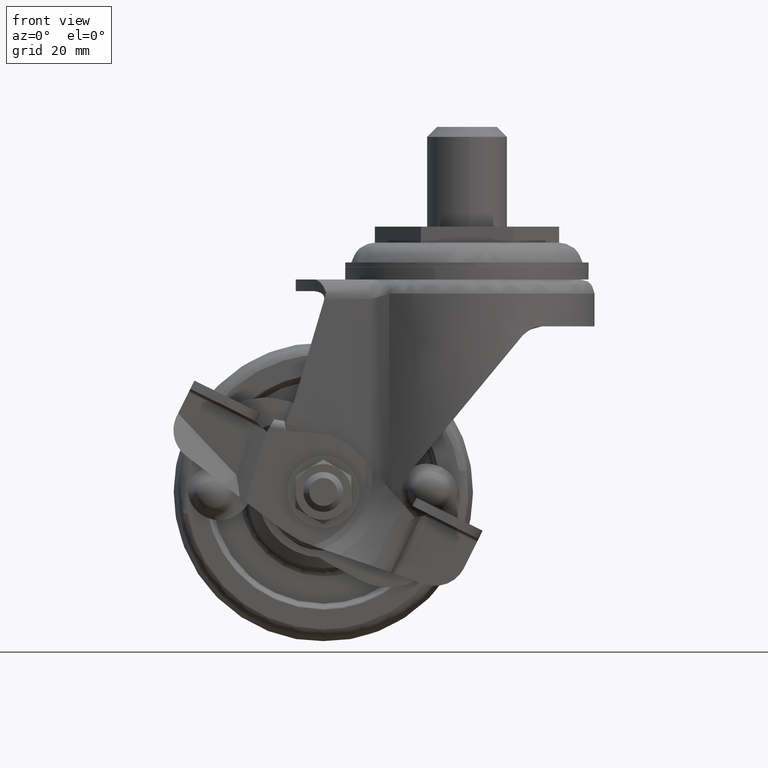
[diagram: clean part render]
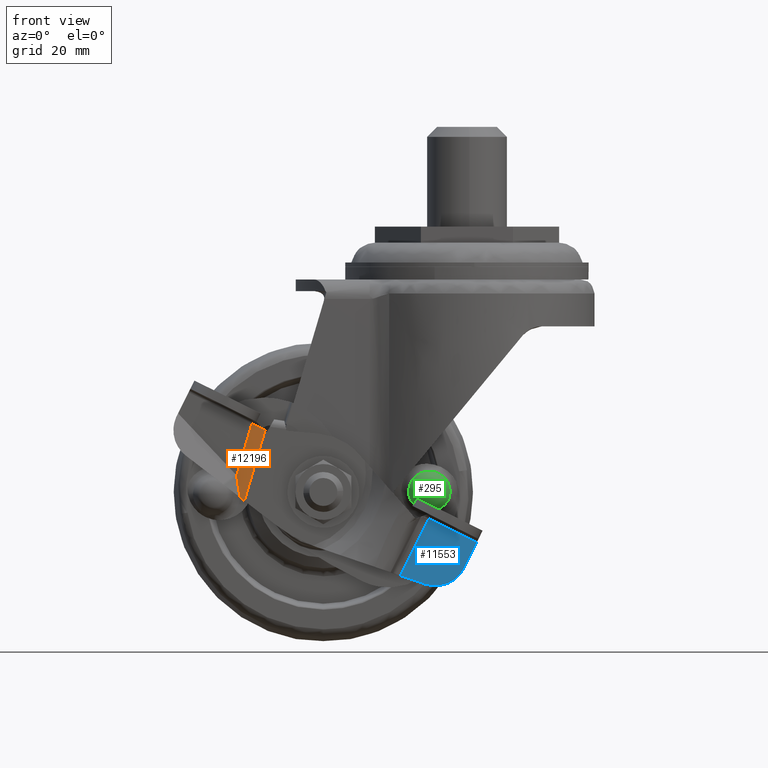
[diagram: same view with three faces highlighted in distinct colors, each labeled with its STEP entity id]
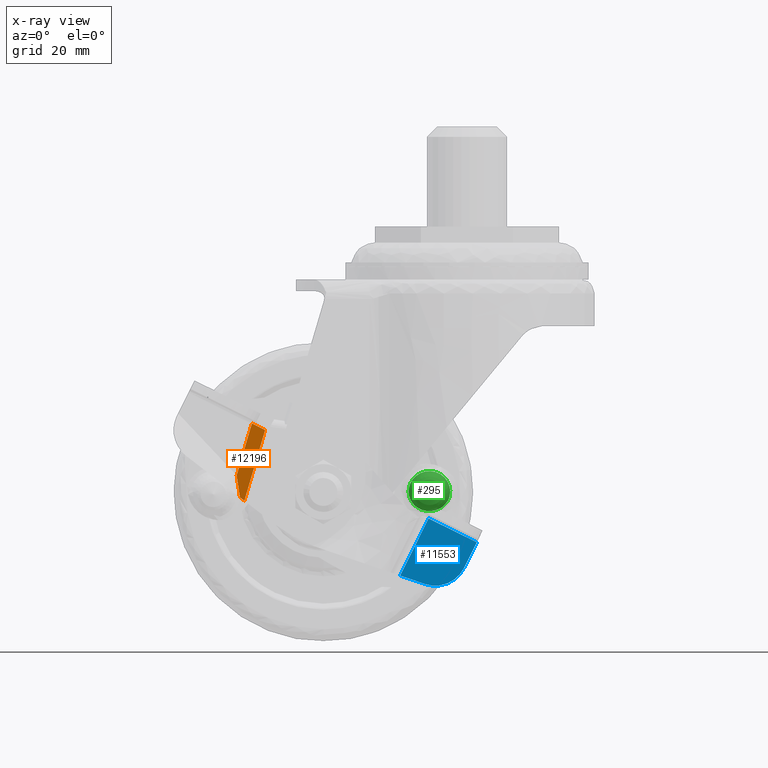
[diagram: x-ray of the same camera — body ghosted, the three highlighted faces saturated]
A machine part, front view with three faces highlighted in distinct colors.
The next image is the same camera in x-ray (body ghosted, the three faces saturated) — at least one of them is partly hidden behind the body in this view.
Their STEP definitions:

[orange] entity #12196 — the highlighted face is a freeform B-spline surface patch.
#10181=CARTESIAN_POINT('',(-53.922996832973801,-24.201038000000000,-45.427903192544029));
#10182=VERTEX_POINT('',#10181);
#10190=CARTESIAN_POINT('',(-53.892253483723209,-24.204782371683550,-45.346633070148677));
#10191=VERTEX_POINT('',#10190);
#10192=CARTESIAN_POINT('',(-53.892253483723209,-24.204782371683550,-45.346633070148677));
#10193=CARTESIAN_POINT('',(-53.910598850883410,-24.201038000000000,-45.385698108649251));
#10194=CARTESIAN_POINT('',(-53.922996832973759,-24.201038000000000,-45.427903192543951));
#10202=(BOUNDED_CURVE()B_SPLINE_CURVE(2,(#10192,#10193,#10194),.UNSPECIFIED.,.F.,.U.)CURVE()GEOMETRIC_REPRESENTATION_ITEM()QUASI_UNIFORM_CURVE()RATIONAL_B_SPLINE_CURVE((1.0,0.999063468533536,1.0))REPRESENTATION_ITEM(''));
#10203=EDGE_CURVE('',#10191,#10182,#10202,.T.);
#12107=CARTESIAN_POINT('',(-57.732734190092913,-24.201038000000000,-58.396972158955080));
#12108=VERTEX_POINT('',#12107);
#12109=CARTESIAN_POINT('',(-53.922996832973801,-24.201038000000000,-45.427903192544029));
#12110=CARTESIAN_POINT('',(-57.732734190092913,-24.201038000000000,-58.396972158955080));
#12111=QUASI_UNIFORM_CURVE('',1,(#12109,#12110),.UNSPECIFIED.,.F.,.U.);
#12112=EDGE_CURVE('',#10182,#12108,#12111,.T.);
#12139=CARTESIAN_POINT('',(-58.540480401460677,-24.926882033979151,-65.680068682042759));
#12140=CARTESIAN_POINT('',(-51.543972487027602,-28.740320535323029,-65.680068682042759));
#12141=CARTESIAN_POINT('',(-57.107348187129077,-22.297517255586499,-44.379295942986353));
#12142=CARTESIAN_POINT('',(-50.110840272696009,-26.110955756930380,-44.379295942986353));
#12143=B_SPLINE_SURFACE_WITH_KNOTS('',1,1,((#12139,#12141),(#12140,#12142)),.UNSPECIFIED.,.F.,.F.,.U.,(2,2),(2,2),(0.0,7.968276865185881),(0.0,21.510238175402328),.UNSPECIFIED.);
#12144=CARTESIAN_POINT('',(-50.609668868128310,-26.270028859010299,-47.070919676201477));
#12145=VERTEX_POINT('',#12144);
#12146=CARTESIAN_POINT('',(-50.786893009545608,-26.144721783127100,-46.891598881695728));
#12147=VERTEX_POINT('',#12146);
#12148=CARTESIAN_POINT('',(-50.609668868128310,-26.270028859010299,-47.070919676201477));
#12149=CARTESIAN_POINT('',(-50.786893009545608,-26.144721783127100,-46.891598881695728));
#12150=QUASI_UNIFORM_CURVE('',1,(#12148,#12149),.UNSPECIFIED.,.F.,.U.);
#12151=EDGE_CURVE('',#12145,#12147,#12150,.T.);
#12152=ORIENTED_EDGE('',*,*,#12151,.T.);
#12153=CARTESIAN_POINT('',(-50.786893009545608,-26.144721783127100,-46.891598881695728));
#12154=CARTESIAN_POINT('',(-53.892253483723209,-24.204782371683550,-45.346633070148677));
#12155=QUASI_UNIFORM_CURVE('',1,(#12153,#12154),.UNSPECIFIED.,.F.,.U.);
#12156=EDGE_CURVE('',#12147,#10191,#12155,.T.);
#12157=ORIENTED_EDGE('',*,*,#12156,.T.);
#12158=ORIENTED_EDGE('',*,*,#10203,.T.);
#12159=ORIENTED_EDGE('',*,*,#12112,.T.);
#12160=CARTESIAN_POINT('',(-57.717062507146913,-24.224277311140550,-58.488767614594380));
#12161=VERTEX_POINT('',#12160);
#12162=CARTESIAN_POINT('',(-57.732734190092877,-24.201038000000000,-58.396972158955087));
#12163=CARTESIAN_POINT('',(-57.724063698398780,-24.213029364423818,-58.442350146182513));
#12164=CARTESIAN_POINT('',(-57.717062507146913,-24.224277311140519,-58.488767614594408));
#12172=(BOUNDED_CURVE()B_SPLINE_CURVE(2,(#12162,#12163,#12164),.UNSPECIFIED.,.F.,.U.)CURVE()GEOMETRIC_REPRESENTATION_ITEM()QUASI_UNIFORM_CURVE()RATIONAL_B_SPLINE_CURVE((1.0,0.999778344805573,1.0))REPRESENTATION_ITEM(''));
#12173=EDGE_CURVE('',#12108,#12161,#12172,.T.);
#12174=ORIENTED_EDGE('',*,*,#12173,.T.);
#12175=CARTESIAN_POINT('',(-56.908327992334613,-25.523570874667399,-63.850627824443073));
#12176=VERTEX_POINT('',#12175);
#12177=CARTESIAN_POINT('',(-57.717062507146913,-24.224277311140550,-58.488767614594380));
#12178=CARTESIAN_POINT('',(-56.908327992334613,-25.523570874667399,-63.850627824443073));
#12179=QUASI_UNIFORM_CURVE('',1,(#12177,#12178),.UNSPECIFIED.,.F.,.U.);
#12180=EDGE_CURVE('',#12161,#12176,#12179,.T.);
#12181=ORIENTED_EDGE('',*,*,#12180,.T.);
#12182=CARTESIAN_POINT('',(-55.792051035612211,-26.270028859010299,-64.712732074319689));
#12183=VERTEX_POINT('',#12182);
#12184=CARTESIAN_POINT('',(-56.908327992334613,-25.523570874667399,-63.850627824443073));
#12185=CARTESIAN_POINT('',(-55.792051035612211,-26.270028859010299,-64.712732074319689));
#12186=QUASI_UNIFORM_CURVE('',1,(#12184,#12185),.UNSPECIFIED.,.F.,.U.);
#12187=EDGE_CURVE('',#12176,#12183,#12186,.T.);
#12188=ORIENTED_EDGE('',*,*,#12187,.T.);
#12189=CARTESIAN_POINT('',(-55.792051035612211,-26.270028859010299,-64.712732074319689));
#12190=CARTESIAN_POINT('',(-50.609668868128310,-26.270028859010299,-47.070919676201477));
#12191=QUASI_UNIFORM_CURVE('',1,(#12189,#12190),.UNSPECIFIED.,.F.,.U.);
#12192=EDGE_CURVE('',#12183,#12145,#12191,.T.);
#12193=ORIENTED_EDGE('',*,*,#12192,.T.);
#12194=EDGE_LOOP('',(#12152,#12157,#12158,#12159,#12174,#12181,#12188,#12193));
#12195=FACE_OUTER_BOUND('',#12194,.T.);
#12196=ADVANCED_FACE('',(#12195),#12143,.T.);

[blue] entity #11553 — the highlighted face is a freeform B-spline surface patch.
#9620=CARTESIAN_POINT('',(-0.764297999999627,-25.588504000000000,-81.589334105346765));
#9621=VERTEX_POINT('',#9620);
#9622=CARTESIAN_POINT('',(-10.512397443133210,-25.588504000000000,-85.596530954005274));
#9623=VERTEX_POINT('',#9622);
#9624=CARTESIAN_POINT('',(-0.764297999999652,-25.588504000000000,-81.589334105346765));
#9625=CARTESIAN_POINT('',(-3.884164092873071,-25.588504000000000,-87.860243844752603));
#9626=CARTESIAN_POINT('',(-10.512397443133210,-25.588504000000000,-85.596530954005274));
#9634=(BOUNDED_CURVE()B_SPLINE_CURVE(2,(#9624,#9625,#9626),.UNSPECIFIED.,.F.,.U.)CURVE()GEOMETRIC_REPRESENTATION_ITEM()QUASI_UNIFORM_CURVE()RATIONAL_B_SPLINE_CURVE((1.0,0.752384051134709,1.0))REPRESENTATION_ITEM(''));
#9635=EDGE_CURVE('',#9621,#9623,#9634,.T.);
#9681=CARTESIAN_POINT('',(2.440974514082862,-25.588504000000000,-75.146759641563690));
#9682=VERTEX_POINT('',#9681);
#9696=CARTESIAN_POINT('',(-0.764297999999627,-25.588504000000000,-81.589334105346765));
#9697=CARTESIAN_POINT('',(2.440974514082862,-25.588504000000000,-75.146759641563690));
#9698=QUASI_UNIFORM_CURVE('',1,(#9696,#9697),.UNSPECIFIED.,.F.,.U.);
#9699=EDGE_CURVE('',#9621,#9682,#9698,.T.);
#10104=CARTESIAN_POINT('',(-9.614841273251308,-25.588504000000000,-69.148818891583886));
#10105=VERTEX_POINT('',#10104);
#10159=CARTESIAN_POINT('',(2.440974514082862,-25.588504000000000,-75.146759641563690));
#10160=CARTESIAN_POINT('',(-9.614841273251308,-25.588504000000000,-69.148818891583886));
#10161=QUASI_UNIFORM_CURVE('',1,(#10159,#10160),.UNSPECIFIED.,.F.,.U.);
#10162=EDGE_CURVE('',#9682,#10105,#10161,.T.);
#10809=CARTESIAN_POINT('',(-16.739622554285909,-25.588504000000000,-83.469772734615077));
#10810=VERTEX_POINT('',#10809);
#10811=CARTESIAN_POINT('',(-9.614841273251308,-25.588504000000000,-69.148818891583886));
#10812=CARTESIAN_POINT('',(-16.739622554285909,-25.588504000000000,-83.469772734615077));
#10813=QUASI_UNIFORM_CURVE('',1,(#10811,#10812),.UNSPECIFIED.,.F.,.U.);
#10814=EDGE_CURVE('',#10105,#10810,#10813,.T.);
#11537=CARTESIAN_POINT('',(-17.697693340675212,-25.588504000000000,-68.305818318460808));
#11538=CARTESIAN_POINT('',(3.399045814935867,-25.588504000000000,-68.305818318460808));
#11539=CARTESIAN_POINT('',(-17.697693340675212,-25.588504000000000,-86.868708922828986));
#11540=CARTESIAN_POINT('',(3.399045814935867,-25.588504000000000,-86.868708922828986));
#11541=B_SPLINE_SURFACE_WITH_KNOTS('',1,1,((#11537,#11539),(#11538,#11540)),.UNSPECIFIED.,.F.,.F.,.U.,(2,2),(2,2),(0.0,21.096739155611068),(0.0,18.562890604368182),.UNSPECIFIED.);
#11542=ORIENTED_EDGE('',*,*,#9699,.T.);
#11543=ORIENTED_EDGE('',*,*,#10162,.T.);
#11544=ORIENTED_EDGE('',*,*,#10814,.T.);
#11545=CARTESIAN_POINT('',(-16.739622554285909,-25.588504000000000,-83.469772734615077));
#11546=CARTESIAN_POINT('',(-10.512397443133210,-25.588504000000000,-85.596530954005274));
#11547=QUASI_UNIFORM_CURVE('',1,(#11545,#11546),.UNSPECIFIED.,.F.,.U.);
#11548=EDGE_CURVE('',#10810,#9623,#11547,.T.);
#11549=ORIENTED_EDGE('',*,*,#11548,.T.);
#11550=ORIENTED_EDGE('',*,*,#9635,.F.);
#11551=EDGE_LOOP('',(#11542,#11543,#11544,#11549,#11550));
#11552=FACE_OUTER_BOUND('',#11551,.T.);
#11553=ADVANCED_FACE('',(#11552),#11541,.F.);

[green] entity #295 — the highlighted face is a freeform B-spline surface patch.
#187=CARTESIAN_POINT('',(-13.594256674679039,-20.273079777429533,-65.755012077192731));
#188=CARTESIAN_POINT('',(-12.194682263384232,-22.104553468132991,-67.485013813646077));
#189=CARTESIAN_POINT('',(-6.716543709148418,-21.824722858626135,-67.448722027762045));
#190=CARTESIAN_POINT('',(-5.442167765473595,-20.123837968044544,-65.945201054763245));
#191=CARTESIAN_POINT('',(-14.815225798336108,-22.235454829838091,-64.665301530894382));
#192=CARTESIAN_POINT('',(-13.419601692384971,-26.084959899138841,-66.628830538700512));
#193=CARTESIAN_POINT('',(-5.241016466660025,-25.667186878986069,-66.574648728418055));
#194=CARTESIAN_POINT('',(-4.004920945786179,-22.176148714384890,-64.841690297752280));
#195=CARTESIAN_POINT('',(-14.815225798336108,-22.870483847858385,-59.768861390559778));
#196=CARTESIAN_POINT('',(-13.419601692384971,-27.080872432115910,-58.949770268457279));
#197=CARTESIAN_POINT('',(-5.241016466660025,-26.663099411963149,-58.895588458174821));
#198=CARTESIAN_POINT('',(-4.004920945786179,-22.856545821682868,-59.595436011723955));
#199=CARTESIAN_POINT('',(-13.719709808516411,-21.438474474174427,-58.211876937901884));
#200=CARTESIAN_POINT('',(-12.306861673515250,-23.816266490886537,-57.019043746567526));
#201=CARTESIAN_POINT('',(-6.581413371776244,-23.523802970273888,-56.981113573425731));
#202=CARTESIAN_POINT('',(-5.296722046943526,-21.348552178237579,-57.991674466169975));
#210=(BOUNDED_SURFACE()B_SPLINE_SURFACE(2,2,((#187,#191,#195,#199),(#188,#192,#196,#200),(#189,#193,#197,#201),(#190,#194,#198,#202)),.UNSPECIFIED.,.F.,.F.,.U.)B_SPLINE_SURFACE_WITH_KNOTS((3,1,3),(3,1,3),(0.0,7.036044399579120,13.391854371060520),(0.0,6.553044713336142,12.662436556928959),.UNSPECIFIED.)GEOMETRIC_REPRESENTATION_ITEM()RATIONAL_B_SPLINE_SURFACE(((2.061244210673777,1.568294526259336,1.568294526259336,1.996756507697689),(1.492949684414441,1.0,1.0,1.428461981438353),(1.492949684414441,1.0,1.0,1.428461981438353),(1.956672152212827,1.463722467798386,1.463722467798386,1.892184449236739)))REPRESENTATION_ITEM('')SURFACE());
#211=CARTESIAN_POINT('',(-6.299285483394559,-22.433474497511749,-66.360138783597790));
#212=VERTEX_POINT('',#211);
#213=CARTESIAN_POINT('',(-4.333689647816985,-22.734810936500651,-63.541912282681302));
#214=VERTEX_POINT('',#213);
#215=CARTESIAN_POINT('',(-6.299285483394590,-22.433474497511732,-66.360138783597748));
#216=CARTESIAN_POINT('',(-6.238501952966510,-22.433474497511739,-66.317725643886774));
#217=CARTESIAN_POINT('',(-6.178371484259217,-22.433678299312440,-66.273832970927103));
#218=CARTESIAN_POINT('',(-6.060739778018633,-22.434562122462211,-66.184044973501642));
#219=CARTESIAN_POINT('',(-6.003082443326088,-22.435241655832041,-66.138045139457475));
#220=CARTESIAN_POINT('',(-5.833555699298838,-22.438095464317239,-65.996762737759283));
#221=CARTESIAN_POINT('',(-5.725124967589306,-22.441082994531769,-65.898203522023422));
#222=CARTESIAN_POINT('',(-5.413590500226370,-22.454178125661119,-65.589462460755513));
#223=CARTESIAN_POINT('',(-5.224116880190115,-22.468359572255292,-65.366337305989518));
#224=CARTESIAN_POINT('',(-5.011750066210492,-22.496469514265058,-65.064349698844055));
#225=CARTESIAN_POINT('',(-4.970401605264902,-22.502635970853639,-65.002607834246447));
#226=CARTESIAN_POINT('',(-4.891053168227073,-22.515985080836661,-64.878000454275778));
#227=CARTESIAN_POINT('',(-4.852994258519684,-22.523171168609171,-64.815069535927506));
#228=CARTESIAN_POINT('',(-4.743611121131385,-22.546347307440762,-64.624431225779915));
#229=CARTESIAN_POINT('',(-4.677070152401643,-22.563953715821938,-64.494882568811320));
#230=CARTESIAN_POINT('',(-4.496547057577846,-22.623948964570289,-64.098998605229369));
#231=CARTESIAN_POINT('',(-4.401463551446448,-22.673463631518231,-63.825505568882789));
#232=CARTESIAN_POINT('',(-4.333689647817005,-22.734810936500651,-63.541912282681189));
#233=B_SPLINE_CURVE_WITH_KNOTS('',3,(#215,#216,#217,#218,#219,#220,#221,#222,#223,#224,#225,#226,#227,#228,#229,#230,#231,#232),.UNSPECIFIED.,.F.,.U.,(4,2,2,2,2,2,2,2,4),(0.0,0.062500000000002,0.125000000000004,0.250000000000001,0.499999999999993,0.562499999999992,0.624999999999990,0.749999999999997,1.0),.UNSPECIFIED.);
#234=EDGE_CURVE('',#212,#214,#233,.T.);
#235=ORIENTED_EDGE('',*,*,#234,.T.);
#236=CARTESIAN_POINT('',(-14.498710352182840,-22.734810936500651,-63.541912282681302));
#237=VERTEX_POINT('',#236);
#238=CARTESIAN_POINT('',(-4.333689647816985,-22.734810936500651,-63.541912282681302));
#239=CARTESIAN_POINT('',(-4.244561342772776,-22.815414510796259,-63.169302048352037));
#240=CARTESIAN_POINT('',(-4.172871693633892,-22.944681658646040,-62.571732271015897));
#241=CARTESIAN_POINT('',(-4.227682998669450,-23.141328766871158,-61.662681811381553));
#242=CARTESIAN_POINT('',(-4.441048504004193,-23.349509239202700,-60.700315553009759));
#243=CARTESIAN_POINT('',(-4.923372414536964,-23.566891258885150,-59.695412947336770));
#244=CARTESIAN_POINT('',(-5.718056301409222,-23.778672907519919,-58.716399576443941));
#245=CARTESIAN_POINT('',(-6.590116029957256,-23.924177487880659,-58.043768609434963));
#246=CARTESIAN_POINT('',(-7.717841177659249,-24.039378115504661,-57.511225200780792));
#247=CARTESIAN_POINT('',(-8.777673089112398,-24.090666840130609,-57.274130372133470));
#248=CARTESIAN_POINT('',(-10.054714780915180,-24.090682729182749,-57.274056921942638));
#249=CARTESIAN_POINT('',(-11.162753265414009,-24.037047144693481,-57.522000687656778));
#250=CARTESIAN_POINT('',(-12.152107588940090,-23.932295233623339,-58.006242328755562));
#251=CARTESIAN_POINT('',(-12.978973812966590,-23.802163609005589,-58.607807963107362));
#252=CARTESIAN_POINT('',(-13.606234572532371,-23.655147260077580,-59.287427478885363));
#253=CARTESIAN_POINT('',(-14.126802452673230,-23.473199256813832,-60.128527021921478));
#254=CARTESIAN_POINT('',(-14.460295570954390,-23.294237283644591,-60.955823283220177));
#255=CARTESIAN_POINT('',(-14.686866130342640,-23.038927589174101,-62.136055494446403));
#256=CARTESIAN_POINT('',(-14.627081639182951,-22.850673831392630,-63.006304112370387));
#257=CARTESIAN_POINT('',(-14.498710352182840,-22.734810936500651,-63.541912282681302));
#258=B_SPLINE_CURVE_WITH_KNOTS('',3,(#238,#239,#240,#241,#242,#243,#244,#245,#246,#247,#248,#249,#250,#251,#252,#253,#254,#255,#256,#257),.UNSPECIFIED.,.F.,.U.,(4,1,1,1,1,1,1,1,1,1,1,1,1,1,1,1,1,4),(0.000000336949899,1.174506872078155,1.835169513300574,2.789497266395010,4.184283209553179,5.212016885474698,6.606651905633616,7.487599640664111,8.955767931299128,9.836672910105831,11.304841200641681,12.332544654117999,13.140000154736279,14.387947487275181,15.122041221434831,16.149766861377739,17.104095562103112,18.792440538304710),.UNSPECIFIED.);
#259=EDGE_CURVE('',#214,#237,#258,.T.);
#260=ORIENTED_EDGE('',*,*,#259,.T.);
#261=CARTESIAN_POINT('',(-12.533114516605281,-22.433474497511749,-66.360138783597790));
#262=VERTEX_POINT('',#261);
#263=CARTESIAN_POINT('',(-14.498710352182840,-22.734810936500651,-63.541912282681302));
#264=CARTESIAN_POINT('',(-14.431092155915721,-22.673604574071831,-63.824854026619498));
#265=CARTESIAN_POINT('',(-14.336226628696689,-22.624125455233109,-64.097989019467946));
#266=CARTESIAN_POINT('',(-14.155925715159469,-22.564125767299171,-64.493670273532985));
#267=CARTESIAN_POINT('',(-14.089442116190311,-22.546507635784291,-64.623207820062419));
#268=CARTESIAN_POINT('',(-13.943649636297780,-22.515573435085450,-64.877471158592641));
#269=CARTESIAN_POINT('',(-13.863906391299640,-22.502219485748530,-65.002735318541056));
#270=CARTESIAN_POINT('',(-13.610085120254180,-22.468549917569270,-65.363979384225445));
#271=CARTESIAN_POINT('',(-13.420758430144801,-22.454284293401809,-65.587393643502708));
#272=CARTESIAN_POINT('',(-13.108087727823920,-22.441105136305321,-65.897466207742440));
#273=CARTESIAN_POINT('',(-12.999052706182781,-22.438094333144299,-65.996621761974765));
#274=CARTESIAN_POINT('',(-12.771255572144010,-22.434268908939099,-66.186400689358351));
#275=CARTESIAN_POINT('',(-12.653666744022180,-22.433474497511732,-66.276020628105769));
#276=CARTESIAN_POINT('',(-12.533114516605290,-22.433474497511732,-66.360138783597804));
#277=B_SPLINE_CURVE_WITH_KNOTS('',3,(#263,#264,#265,#266,#267,#268,#269,#270,#271,#272,#273,#274,#275,#276),.UNSPECIFIED.,.F.,.U.,(4,2,2,2,2,2,4),(0.0,0.249999999999989,0.374999999999990,0.499999999999990,0.749999999999991,0.874999999999995,1.0),.UNSPECIFIED.);
#278=EDGE_CURVE('',#237,#262,#277,.T.);
#279=ORIENTED_EDGE('',*,*,#278,.T.);
#280=CARTESIAN_POINT('',(-12.533114516605270,-22.433474497511849,-66.360138783597776));
#281=CARTESIAN_POINT('',(-9.416199999999922,-22.433474497511849,-68.535039285905128));
#282=CARTESIAN_POINT('',(-6.299285483394620,-22.433474497511849,-66.360138783597719));
#290=(BOUNDED_CURVE()B_SPLINE_CURVE(2,(#280,#281,#282),.UNSPECIFIED.,.F.,.U.)CURVE()GEOMETRIC_REPRESENTATION_ITEM()QUASI_UNIFORM_CURVE()RATIONAL_B_SPLINE_CURVE((1.0,0.820088803750746,1.0))REPRESENTATION_ITEM(''));
#291=EDGE_CURVE('',#262,#212,#290,.T.);
#292=ORIENTED_EDGE('',*,*,#291,.T.);
#293=EDGE_LOOP('',(#235,#260,#279,#292));
#294=FACE_OUTER_BOUND('',#293,.T.);
#295=ADVANCED_FACE('',(#294),#210,.T.);